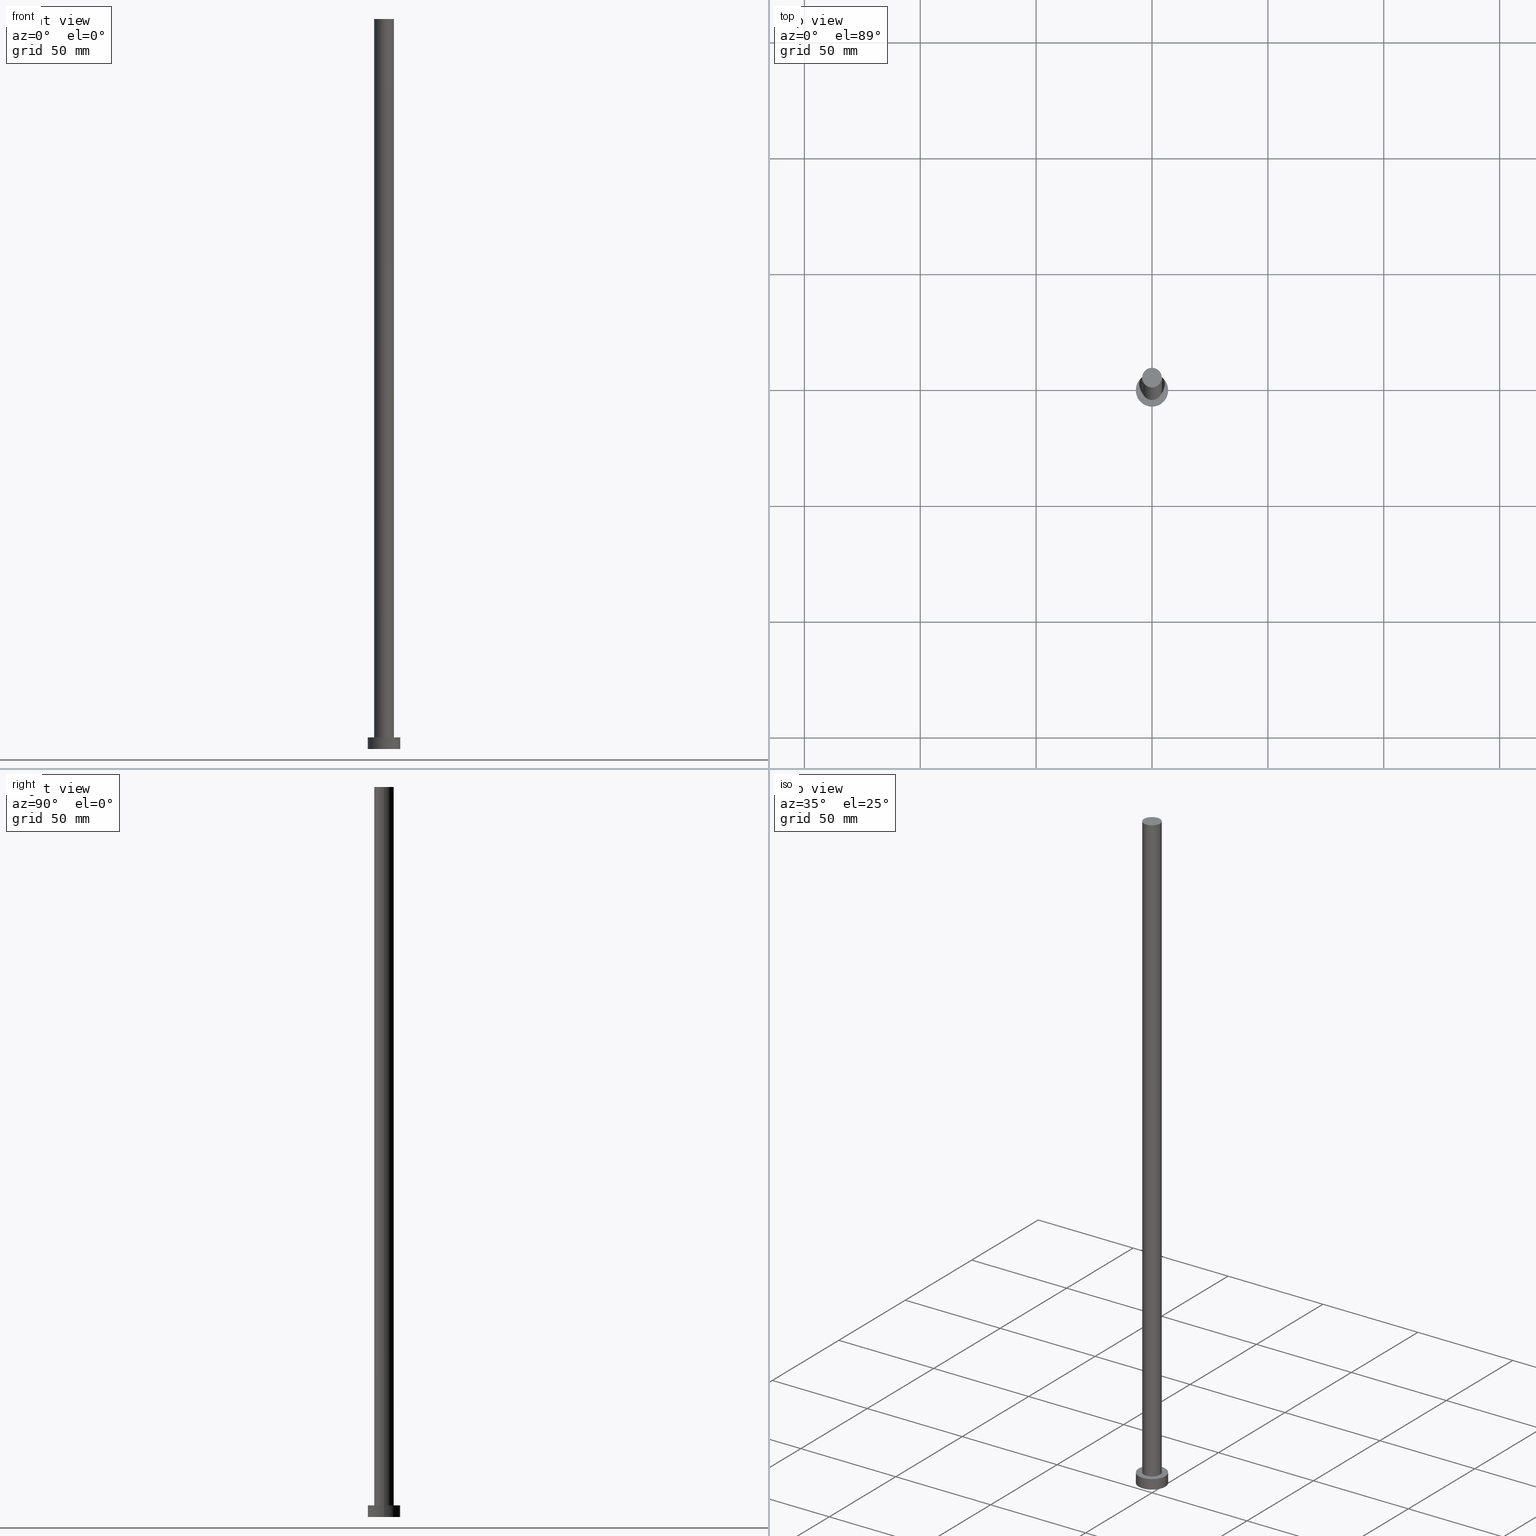
[diagram: canonical four-view strip — front | top / right | iso, engineering-drawing reading convention]
A machine part, canonical four-view strip (front | top / right | iso — engineering-drawing reading convention). The complete STEP part file that produces these views, byte-faithful:
ISO-10303-21;
HEADER;
FILE_DESCRIPTION (( 'STEP AP203' ),
    '1' );
FILE_NAME ('18b3.STEP',
    '2026-02-06T12:38:40',
    ( '' ),
    ( '' ),
    'SwSTEP 2.0',
    'SolidWorks 2019',
    '' );
FILE_SCHEMA (( 'CONFIG_CONTROL_DESIGN' ));
ENDSEC;

DATA;
#1 = COORDINATED_UNIVERSAL_TIME_OFFSET ( 1, 0, .AHEAD. ) ;
#2 = PLANE ( 'NONE',  #245 ) ;
#3 = DIRECTION ( 'NONE',  ( -0.000000000000000000, -0.000000000000000000, -1.000000000000000000 ) ) ;
#4 = CARTESIAN_POINT ( 'NONE',  ( 0.000000000000000000, 0.000000000000000000, 0.000000000000000000 ) ) ;
#5 = AXIS2_PLACEMENT_3D ( 'NONE', #136, #19, #39 ) ;
#6 = CARTESIAN_POINT ( 'NONE',  ( 7.000000000000000000, 8.572527594031473190E-16, 5.000000000000000000 ) ) ;
#7 = AXIS2_PLACEMENT_3D ( 'NONE', #229, #3, #55 ) ;
#8 = ORIENTED_EDGE ( 'NONE', *, *, #249, .F. ) ;
#9 = EDGE_CURVE ( 'NONE', #128, #98, #97, .T. ) ;
#10 = VERTEX_POINT ( 'NONE', #99 ) ;
#11 = ORIENTED_EDGE ( 'NONE', *, *, #176, .F. ) ;
#12 = EDGE_CURVE ( 'NONE', #108, #29, #24, .T. ) ;
#13 = DATE_AND_TIME ( #18, #30 ) ;
#14 = COORDINATED_UNIVERSAL_TIME_OFFSET ( 1, 0, .AHEAD. ) ;
#15 = CALENDAR_DATE ( 2026, 6, 2 ) ;
#16 = VECTOR ( 'NONE', #236, 1000.000000000000000 ) ;
#17 = ORIENTED_EDGE ( 'NONE', *, *, #198, .F. ) ;
#18 = CALENDAR_DATE ( 2026, 6, 2 ) ;
#19 = DIRECTION ( 'NONE',  ( 0.000000000000000000, 0.000000000000000000, 1.000000000000000000 ) ) ;
#20 = CARTESIAN_POINT ( 'NONE',  ( 0.000000000000000000, 0.000000000000000000, 315.0000000000000000 ) ) ;
#21 = EDGE_CURVE ( 'NONE', #98, #243, #46, .T. ) ;
#22 = DIRECTION ( 'NONE',  ( 1.000000000000000000, 0.000000000000000000, -0.000000000000000000 ) ) ;
#23 = CC_DESIGN_PERSON_AND_ORGANIZATION_ASSIGNMENT ( #168, #210, ( #217 ) ) ;
#24 = CIRCLE ( 'NONE', #119, 4.250000000000000000 ) ;
#25 = EDGE_CURVE ( 'NONE', #29, #108, #72, .T. ) ;
#26 = AXIS2_PLACEMENT_3D ( 'NONE', #239, #154, #142 ) ;
#27 = ORIENTED_EDGE ( 'NONE', *, *, #9, .F. ) ;
#28 = PRODUCT_RELATED_PRODUCT_CATEGORY ( 'detail', '', ( #43 ) ) ;
#29 = VERTEX_POINT ( 'NONE', #140 ) ;
#30 = LOCAL_TIME ( 13, 38, 40.00000000000000000, #92 ) ;
#31 = ORIENTED_EDGE ( 'NONE', *, *, #90, .T. ) ;
#32 = APPROVAL_STATUS ( 'not_yet_approved' ) ;
#33 =( LENGTH_UNIT ( ) NAMED_UNIT ( * ) SI_UNIT ( .MILLI., .METRE. ) );
#34 = CYLINDRICAL_SURFACE ( 'NONE', #110, 7.000000000000000000 ) ;
#35 = ORIENTED_EDGE ( 'NONE', *, *, #103, .F. ) ;
#36 = COORDINATED_UNIVERSAL_TIME_OFFSET ( 1, 0, .AHEAD. ) ;
#37 = ORIENTED_EDGE ( 'NONE', *, *, #51, .F. ) ;
#38 = PERSON_AND_ORGANIZATION ( #67, #79 ) ;
#39 = DIRECTION ( 'NONE',  ( 1.000000000000000000, 0.000000000000000000, 0.000000000000000000 ) ) ;
#40 = DIRECTION ( 'NONE',  ( -0.000000000000000000, -0.000000000000000000, -1.000000000000000000 ) ) ;
#41 = DATE_TIME_ROLE ( 'classification_date' ) ;
#42 = ADVANCED_FACE ( 'NONE', ( #211 ), #205, .T. ) ;
#43 = PRODUCT ( '18b3', '18b3', '', ( #160 ) ) ;
#44 = CARTESIAN_POINT ( 'NONE',  ( 0.000000000000000000, 0.000000000000000000, 5.000000000000000000 ) ) ;
#45 = SECURITY_CLASSIFICATION ( '', '', #141 ) ;
#46 = CIRCLE ( 'NONE', #84, 7.000000000000000000 ) ;
#47 = CIRCLE ( 'NONE', #251, 4.250000000000000000 ) ;
#48 = LOCAL_TIME ( 13, 38, 40.00000000000000000, #116 ) ;
#49 =( GEOMETRIC_REPRESENTATION_CONTEXT ( 3 ) GLOBAL_UNCERTAINTY_ASSIGNED_CONTEXT ( ( #183 ) ) GLOBAL_UNIT_ASSIGNED_CONTEXT ( ( #33, #96, #122 ) ) REPRESENTATION_CONTEXT ( 'NONE', 'WORKASPACE' ) );
#50 = APPROVAL_PERSON_ORGANIZATION ( #135, #86, #153 ) ;
#51 = EDGE_CURVE ( 'NONE', #108, #226, #169, .T. ) ;
#52 = ORIENTED_EDGE ( 'NONE', *, *, #249, .T. ) ;
#53 = AXIS2_PLACEMENT_3D ( 'NONE', #4, #172, #22 ) ;
#54 = DIRECTION ( 'NONE',  ( -1.000000000000000000, 0.000000000000000000, 0.000000000000000000 ) ) ;
#55 = DIRECTION ( 'NONE',  ( -1.000000000000000000, 0.000000000000000000, 0.000000000000000000 ) ) ;
#56 = APPROVAL ( #190, 'NEUR�EN�' ) ;
#57 = ORIENTED_EDGE ( 'NONE', *, *, #164, .T. ) ;
#58 = CYLINDRICAL_SURFACE ( 'NONE', #26, 7.000000000000000000 ) ;
#59 = DIRECTION ( 'NONE',  ( 1.000000000000000000, 0.000000000000000000, 0.000000000000000000 ) ) ;
#60 = ORIENTED_EDGE ( 'NONE', *, *, #12, .F. ) ;
#61 = DIRECTION ( 'NONE',  ( 1.000000000000000000, 0.000000000000000000, 0.000000000000000000 ) ) ;
#62 = PERSON_AND_ORGANIZATION ( #67, #79 ) ;
#63 = DIRECTION ( 'NONE',  ( 0.000000000000000000, 0.000000000000000000, 1.000000000000000000 ) ) ;
#64 = CARTESIAN_POINT ( 'NONE',  ( -7.000000000000000000, 0.000000000000000000, 0.000000000000000000 ) ) ;
#65 = CYLINDRICAL_SURFACE ( 'NONE', #146, 4.250000000000000000 ) ;
#66 = ADVANCED_FACE ( 'NONE', ( #255 ), #151, .T. ) ;
#67 = PERSON ( 'NEUR�EN�', 'NEUR�EN�', 'NEUR�EN�', ('NEUR�EN�'), ('NEUR�EN�'), ('NEUR�EN�') ) ;
#68 = ORIENTED_EDGE ( 'NONE', *, *, #198, .T. ) ;
#69 = CARTESIAN_POINT ( 'NONE',  ( 7.000000000000000000, 8.572527594031473190E-16, 0.000000000000000000 ) ) ;
#70 = DIRECTION ( 'NONE',  ( 0.000000000000000000, 0.000000000000000000, 1.000000000000000000 ) ) ;
#71 = APPROVAL_STATUS ( 'not_yet_approved' ) ;
#72 = CIRCLE ( 'NONE', #216, 4.250000000000000000 ) ;
#73 = DATE_TIME_ROLE ( 'creation_date' ) ;
#74 = CARTESIAN_POINT ( 'NONE',  ( 0.000000000000000000, 0.000000000000000000, 0.000000000000000000 ) ) ;
#75 = EDGE_LOOP ( 'NONE', ( #60, #233, #253, #8 ) ) ;
#76 = DIRECTION ( 'NONE',  ( 1.000000000000000000, 0.000000000000000000, 0.000000000000000000 ) ) ;
#77 = FACE_OUTER_BOUND ( 'NONE', #208, .T. ) ;
#78 = LINE ( 'NONE', #137, #148 ) ;
#79 = ORGANIZATION ( 'NEUR�EN�', 'NEUR�EN�', '' ) ;
#80 = APPROVAL ( #71, 'NEUR�EN�' ) ;
#81 = CALENDAR_DATE ( 2026, 6, 2 ) ;
#82 = DIRECTION ( 'NONE',  ( 1.000000000000000000, 0.000000000000000000, -0.000000000000000000 ) ) ;
#83 = CARTESIAN_POINT ( 'NONE',  ( 0.000000000000000000, 0.000000000000000000, 315.0000000000000000 ) ) ;
#84 = AXIS2_PLACEMENT_3D ( 'NONE', #74, #70, #61 ) ;
#85 = PERSON_AND_ORGANIZATION_ROLE ( 'design_owner' ) ;
#86 = APPROVAL ( #32, 'NEUR�EN�' ) ;
#87 = APPLICATION_PROTOCOL_DEFINITION ( 'international standard', 'config_control_design', 1994, #162 ) ;
#88 = CARTESIAN_POINT ( 'NONE',  ( -7.000000000000000000, 0.000000000000000000, 5.000000000000000000 ) ) ;
#89 = AXIS2_PLACEMENT_3D ( 'NONE', #166, #197, #76 ) ;
#90 = EDGE_CURVE ( 'NONE', #126, #243, #78, .T. ) ;
#91 = ADVANCED_FACE ( 'NONE', ( #133 ), #34, .T. ) ;
#92 = COORDINATED_UNIVERSAL_TIME_OFFSET ( 1, 0, .AHEAD. ) ;
#93 = DIRECTION ( 'NONE',  ( 1.000000000000000000, 0.000000000000000000, 0.000000000000000000 ) ) ;
#94 = MANIFOLD_SOLID_BREP ( 'P�idat vysunut�m3', #199 ) ;
#95 = CALENDAR_DATE ( 2026, 6, 2 ) ;
#96 =( NAMED_UNIT ( * ) PLANE_ANGLE_UNIT ( ) SI_UNIT ( $, .RADIAN. ) );
#97 = LINE ( 'NONE', #159, #193 ) ;
#98 = VERTEX_POINT ( 'NONE', #64 ) ;
#99 = CARTESIAN_POINT ( 'NONE',  ( -4.250000000000000000, 0.000000000000000000, 5.000000000000000000 ) ) ;
#100 = EDGE_LOOP ( 'NONE', ( #37, #182, #52, #57 ) ) ;
#101 = DATE_AND_TIME ( #15, #48 ) ;
#102 = CARTESIAN_POINT ( 'NONE',  ( 4.250000000000000000, 5.204748896376250699E-16, 315.0000000000000000 ) ) ;
#103 = EDGE_CURVE ( 'NONE', #126, #128, #204, .T. ) ;
#104 = AXIS2_PLACEMENT_3D ( 'NONE', #143, #123, #114 ) ;
#105 = CC_DESIGN_DATE_AND_TIME_ASSIGNMENT ( #241, #73, ( #131 ) ) ;
#106 = DIRECTION ( 'NONE',  ( 0.000000000000000000, 0.000000000000000000, 1.000000000000000000 ) ) ;
#107 = ORIENTED_EDGE ( 'NONE', *, *, #12, .T. ) ;
#108 = VERTEX_POINT ( 'NONE', #163 ) ;
#109 = EDGE_LOOP ( 'NONE', ( #152, #17 ) ) ;
#110 = AXIS2_PLACEMENT_3D ( 'NONE', #237, #40, #174 ) ;
#111 = DIRECTION ( 'NONE',  ( 1.000000000000000000, 0.000000000000000000, 0.000000000000000000 ) ) ;
#112 = EDGE_CURVE ( 'NONE', #128, #126, #129, .T. ) ;
#113 = FACE_OUTER_BOUND ( 'NONE', #170, .T. ) ;
#114 = DIRECTION ( 'NONE',  ( 1.000000000000000000, 0.000000000000000000, 0.000000000000000000 ) ) ;
#115 = SHAPE_DEFINITION_REPRESENTATION ( #178, #161 ) ;
#116 = COORDINATED_UNIVERSAL_TIME_OFFSET ( 1, 0, .AHEAD. ) ;
#117 = LINE ( 'NONE', #132, #16 ) ;
#118 = DIRECTION ( 'NONE',  ( 0.000000000000000000, 0.000000000000000000, 1.000000000000000000 ) ) ;
#119 = AXIS2_PLACEMENT_3D ( 'NONE', #20, #118, #240 ) ;
#120 = DIRECTION ( 'NONE',  ( -0.000000000000000000, -0.000000000000000000, -1.000000000000000000 ) ) ;
#121 = PERSON_AND_ORGANIZATION ( #67, #79 ) ;
#122 =( NAMED_UNIT ( * ) SI_UNIT ( $, .STERADIAN. ) SOLID_ANGLE_UNIT ( ) );
#123 = DIRECTION ( 'NONE',  ( 0.000000000000000000, 0.000000000000000000, 1.000000000000000000 ) ) ;
#124 = CC_DESIGN_PERSON_AND_ORGANIZATION_ASSIGNMENT ( #188, #139, ( #131 ) ) ;
#125 = CIRCLE ( 'NONE', #242, 4.250000000000000000 ) ;
#126 = VERTEX_POINT ( 'NONE', #6 ) ;
#127 = CC_DESIGN_APPROVAL ( #80, ( #45 ) ) ;
#128 = VERTEX_POINT ( 'NONE', #88 ) ;
#129 = CIRCLE ( 'NONE', #179, 7.000000000000000000 ) ;
#130 = ADVANCED_FACE ( 'NONE', ( #252 ), #196, .F. ) ;
#131 = PRODUCT_DEFINITION ( 'NEZN�M�', '', #217, #147 ) ;
#132 = CARTESIAN_POINT ( 'NONE',  ( -4.250000000000000000, 0.000000000000000000, 315.0000000000000000 ) ) ;
#133 = FACE_OUTER_BOUND ( 'NONE', #201, .T. ) ;
#134 = ORIENTED_EDGE ( 'NONE', *, *, #9, .T. ) ;
#135 = PERSON_AND_ORGANIZATION ( #67, #79 ) ;
#136 = CARTESIAN_POINT ( 'NONE',  ( 0.000000000000000000, 0.000000000000000000, 0.000000000000000000 ) ) ;
#137 = CARTESIAN_POINT ( 'NONE',  ( 7.000000000000000000, 8.572527594031473190E-16, 5.000000000000000000 ) ) ;
#138 = ORIENTED_EDGE ( 'NONE', *, *, #112, .F. ) ;
#139 = PERSON_AND_ORGANIZATION_ROLE ( 'creator' ) ;
#140 = CARTESIAN_POINT ( 'NONE',  ( -4.250000000000000000, 0.000000000000000000, 315.0000000000000000 ) ) ;
#141 = SECURITY_CLASSIFICATION_LEVEL ( 'unclassified' ) ;
#142 = DIRECTION ( 'NONE',  ( -1.000000000000000000, 0.000000000000000000, 0.000000000000000000 ) ) ;
#143 = CARTESIAN_POINT ( 'NONE',  ( 0.000000000000000000, 0.000000000000000000, 5.000000000000000000 ) ) ;
#144 = CARTESIAN_POINT ( 'NONE',  ( 0.000000000000000000, 0.000000000000000000, 5.000000000000000000 ) ) ;
#145 = APPROVAL_PERSON_ORGANIZATION ( #247, #80, #203 ) ;
#146 = AXIS2_PLACEMENT_3D ( 'NONE', #158, #248, #54 ) ;
#147 = DESIGN_CONTEXT ( 'detailed design', #162, 'design' ) ;
#148 = VECTOR ( 'NONE', #155, 1000.000000000000000 ) ;
#149 = DIRECTION ( 'NONE',  ( -0.000000000000000000, -0.000000000000000000, -1.000000000000000000 ) ) ;
#150 = PERSON_AND_ORGANIZATION ( #67, #79 ) ;
#151 = CYLINDRICAL_SURFACE ( 'NONE', #7, 4.250000000000000000 ) ;
#152 = ORIENTED_EDGE ( 'NONE', *, *, #21, .F. ) ;
#153 = APPROVAL_ROLE ( '' ) ;
#154 = DIRECTION ( 'NONE',  ( -0.000000000000000000, -0.000000000000000000, -1.000000000000000000 ) ) ;
#155 = DIRECTION ( 'NONE',  ( -0.000000000000000000, -0.000000000000000000, -1.000000000000000000 ) ) ;
#156 = ADVANCED_FACE ( 'NONE', ( #228, #113 ), #2, .T. ) ;
#157 = APPLICATION_PROTOCOL_DEFINITION ( 'international standard', 'config_control_design', 1994, #246 ) ;
#158 = CARTESIAN_POINT ( 'NONE',  ( 0.000000000000000000, 0.000000000000000000, 315.0000000000000000 ) ) ;
#159 = CARTESIAN_POINT ( 'NONE',  ( -7.000000000000000000, 0.000000000000000000, 5.000000000000000000 ) ) ;
#160 = MECHANICAL_CONTEXT ( 'NONE', #246, 'mechanical' ) ;
#161 = ADVANCED_BREP_SHAPE_REPRESENTATION ( '18b3', ( #94, #89 ), #49 ) ;
#162 = APPLICATION_CONTEXT ( 'configuration controlled 3d designs of mechanical parts and assemblies' ) ;
#163 = CARTESIAN_POINT ( 'NONE',  ( 4.250000000000000000, 5.204748896376250699E-16, 315.0000000000000000 ) ) ;
#164 = EDGE_CURVE ( 'NONE', #10, #226, #125, .T. ) ;
#165 = FACE_OUTER_BOUND ( 'NONE', #75, .T. ) ;
#166 = CARTESIAN_POINT ( 'NONE',  ( 0.000000000000000000, 0.000000000000000000, 0.000000000000000000 ) ) ;
#167 = AXIS2_PLACEMENT_3D ( 'NONE', #214, #192, #195 ) ;
#168 = PERSON_AND_ORGANIZATION ( #67, #79 ) ;
#169 = LINE ( 'NONE', #102, #218 ) ;
#170 = EDGE_LOOP ( 'NONE', ( #206, #222 ) ) ;
#171 = PERSON_AND_ORGANIZATION_ROLE ( 'classification_officer' ) ;
#172 = DIRECTION ( 'NONE',  ( 0.000000000000000000, 0.000000000000000000, 1.000000000000000000 ) ) ;
#173 = APPROVAL_PERSON_ORGANIZATION ( #150, #56, #207 ) ;
#174 = DIRECTION ( 'NONE',  ( -1.000000000000000000, 0.000000000000000000, 0.000000000000000000 ) ) ;
#175 = DIRECTION ( 'NONE',  ( 0.000000000000000000, 0.000000000000000000, 1.000000000000000000 ) ) ;
#176 = EDGE_CURVE ( 'NONE', #226, #10, #47, .T. ) ;
#177 = DIRECTION ( 'NONE',  ( 1.000000000000000000, 0.000000000000000000, 0.000000000000000000 ) ) ;
#178 = PRODUCT_DEFINITION_SHAPE ( 'NONE', 'NONE',  #131 ) ;
#179 = AXIS2_PLACEMENT_3D ( 'NONE', #44, #106, #177 ) ;
#180 = CC_DESIGN_DATE_AND_TIME_ASSIGNMENT ( #212, #41, ( #45 ) ) ;
#181 = LOCAL_TIME ( 13, 38, 40.00000000000000000, #1 ) ;
#182 = ORIENTED_EDGE ( 'NONE', *, *, #25, .F. ) ;
#183 = UNCERTAINTY_MEASURE_WITH_UNIT (LENGTH_MEASURE( 1.000000000000000082E-05 ), #33, 'distance_accuracy_value', 'NONE');
#184 = LOCAL_TIME ( 13, 38, 40.00000000000000000, #36 ) ;
#185 = ORIENTED_EDGE ( 'NONE', *, *, #25, .T. ) ;
#186 = ORIENTED_EDGE ( 'NONE', *, *, #21, .T. ) ;
#187 = CC_DESIGN_APPROVAL ( #86, ( #131 ) ) ;
#188 = PERSON_AND_ORGANIZATION ( #67, #79 ) ;
#189 = CARTESIAN_POINT ( 'NONE',  ( 4.250000000000000000, 5.204748896376250699E-16, 5.000000000000000000 ) ) ;
#190 = APPROVAL_STATUS ( 'not_yet_approved' ) ;
#191 = CARTESIAN_POINT ( 'NONE',  ( 0.000000000000000000, 0.000000000000000000, 5.000000000000000000 ) ) ;
#192 = DIRECTION ( 'NONE',  ( 0.000000000000000000, 0.000000000000000000, 1.000000000000000000 ) ) ;
#193 = VECTOR ( 'NONE', #149, 1000.000000000000000 ) ;
#194 = PERSON_AND_ORGANIZATION_ROLE ( 'design_supplier' ) ;
#195 = DIRECTION ( 'NONE',  ( 1.000000000000000000, 0.000000000000000000, -0.000000000000000000 ) ) ;
#196 = PLANE ( 'NONE',  #53 ) ;
#197 = DIRECTION ( 'NONE',  ( 0.000000000000000000, 0.000000000000000000, 1.000000000000000000 ) ) ;
#198 = EDGE_CURVE ( 'NONE', #243, #98, #219, .T. ) ;
#199 = CLOSED_SHELL ( 'NONE', ( #220, #223, #91, #156, #130, #66, #42 ) ) ;
#200 = EDGE_LOOP ( 'NONE', ( #202, #11 ) ) ;
#201 = EDGE_LOOP ( 'NONE', ( #231, #138, #134, #186 ) ) ;
#202 = ORIENTED_EDGE ( 'NONE', *, *, #164, .F. ) ;
#203 = APPROVAL_ROLE ( '' ) ;
#204 = CIRCLE ( 'NONE', #104, 7.000000000000000000 ) ;
#205 = PLANE ( 'NONE',  #167 ) ;
#206 = ORIENTED_EDGE ( 'NONE', *, *, #112, .T. ) ;
#207 = APPROVAL_ROLE ( '' ) ;
#208 = EDGE_LOOP ( 'NONE', ( #35, #31, #68, #27 ) ) ;
#209 = CC_DESIGN_PERSON_AND_ORGANIZATION_ASSIGNMENT ( #62, #171, ( #45 ) ) ;
#210 = PERSON_AND_ORGANIZATION_ROLE ( 'creator' ) ;
#211 = FACE_OUTER_BOUND ( 'NONE', #244, .T. ) ;
#212 = DATE_AND_TIME ( #81, #181 ) ;
#213 = DIRECTION ( 'NONE',  ( 0.000000000000000000, 0.000000000000000000, 1.000000000000000000 ) ) ;
#214 = CARTESIAN_POINT ( 'NONE',  ( 0.000000000000000000, 0.000000000000000000, 315.0000000000000000 ) ) ;
#215 = CC_DESIGN_APPROVAL ( #56, ( #217 ) ) ;
#216 = AXIS2_PLACEMENT_3D ( 'NONE', #83, #232, #59 ) ;
#217 = PRODUCT_DEFINITION_FORMATION_WITH_SPECIFIED_SOURCE ( 'LIBOVOLN�', '', #43, .NOT_KNOWN. ) ;
#218 = VECTOR ( 'NONE', #120, 1000.000000000000000 ) ;
#219 = CIRCLE ( 'NONE', #5, 7.000000000000000000 ) ;
#220 = ADVANCED_FACE ( 'NONE', ( #165 ), #65, .T. ) ;
#221 = CC_DESIGN_PERSON_AND_ORGANIZATION_ASSIGNMENT ( #121, #85, ( #43 ) ) ;
#222 = ORIENTED_EDGE ( 'NONE', *, *, #103, .T. ) ;
#223 = ADVANCED_FACE ( 'NONE', ( #77 ), #58, .T. ) ;
#224 = CC_DESIGN_SECURITY_CLASSIFICATION ( #45, ( #217 ) ) ;
#225 = CC_DESIGN_PERSON_AND_ORGANIZATION_ASSIGNMENT ( #38, #194, ( #217 ) ) ;
#226 = VERTEX_POINT ( 'NONE', #189 ) ;
#227 = DATE_AND_TIME ( #235, #184 ) ;
#228 = FACE_BOUND ( 'NONE', #200, .T. ) ;
#229 = CARTESIAN_POINT ( 'NONE',  ( 0.000000000000000000, 0.000000000000000000, 315.0000000000000000 ) ) ;
#230 = APPROVAL_DATE_TIME ( #13, #80 ) ;
#231 = ORIENTED_EDGE ( 'NONE', *, *, #90, .F. ) ;
#232 = DIRECTION ( 'NONE',  ( 0.000000000000000000, 0.000000000000000000, 1.000000000000000000 ) ) ;
#233 = ORIENTED_EDGE ( 'NONE', *, *, #51, .T. ) ;
#234 = LOCAL_TIME ( 13, 38, 40.00000000000000000, #14 ) ;
#235 = CALENDAR_DATE ( 2026, 6, 2 ) ;
#236 = DIRECTION ( 'NONE',  ( -0.000000000000000000, -0.000000000000000000, -1.000000000000000000 ) ) ;
#237 = CARTESIAN_POINT ( 'NONE',  ( 0.000000000000000000, 0.000000000000000000, 5.000000000000000000 ) ) ;
#238 = APPROVAL_DATE_TIME ( #101, #56 ) ;
#239 = CARTESIAN_POINT ( 'NONE',  ( 0.000000000000000000, 0.000000000000000000, 5.000000000000000000 ) ) ;
#240 = DIRECTION ( 'NONE',  ( 1.000000000000000000, 0.000000000000000000, 0.000000000000000000 ) ) ;
#241 = DATE_AND_TIME ( #95, #234 ) ;
#242 = AXIS2_PLACEMENT_3D ( 'NONE', #144, #213, #111 ) ;
#243 = VERTEX_POINT ( 'NONE', #69 ) ;
#244 = EDGE_LOOP ( 'NONE', ( #185, #107 ) ) ;
#245 = AXIS2_PLACEMENT_3D ( 'NONE', #254, #63, #82 ) ;
#246 = APPLICATION_CONTEXT ( 'configuration controlled 3d designs of mechanical parts and assemblies' ) ;
#247 = PERSON_AND_ORGANIZATION ( #67, #79 ) ;
#248 = DIRECTION ( 'NONE',  ( -0.000000000000000000, -0.000000000000000000, -1.000000000000000000 ) ) ;
#249 = EDGE_CURVE ( 'NONE', #29, #10, #117, .T. ) ;
#250 = APPROVAL_DATE_TIME ( #227, #86 ) ;
#251 = AXIS2_PLACEMENT_3D ( 'NONE', #191, #175, #93 ) ;
#252 = FACE_OUTER_BOUND ( 'NONE', #109, .T. ) ;
#253 = ORIENTED_EDGE ( 'NONE', *, *, #176, .T. ) ;
#254 = CARTESIAN_POINT ( 'NONE',  ( 0.000000000000000000, 0.000000000000000000, 5.000000000000000000 ) ) ;
#255 = FACE_OUTER_BOUND ( 'NONE', #100, .T. ) ;
ENDSEC;
END-ISO-10303-21;
